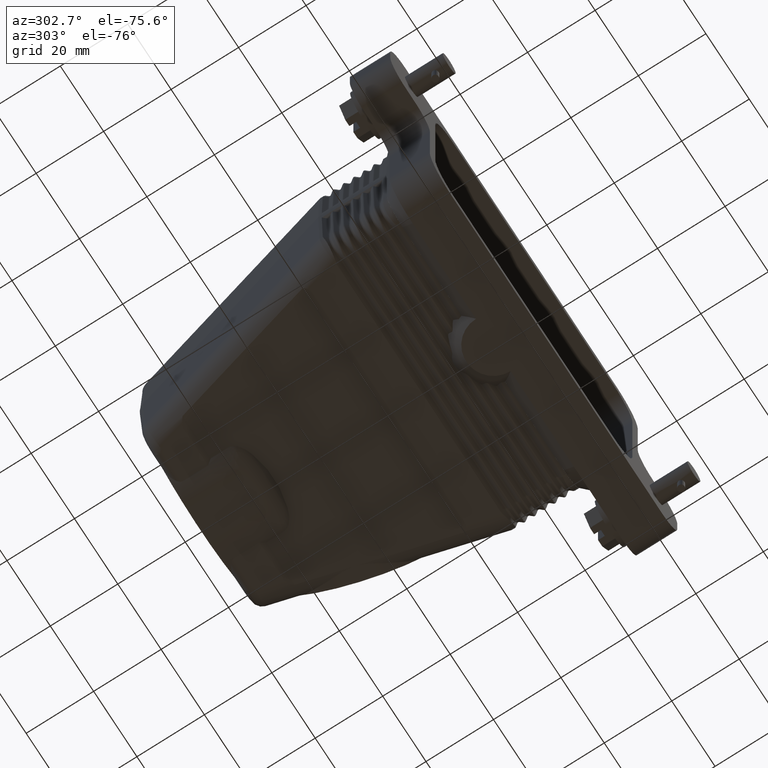
[diagram: clean part render]
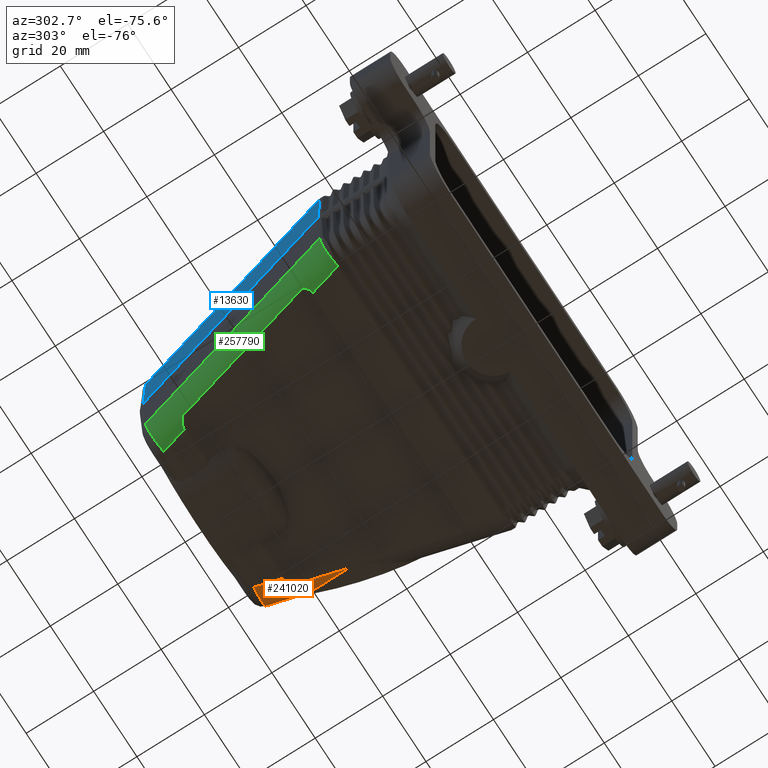
[diagram: same view with three faces highlighted in distinct colors, each labeled with its STEP entity id]
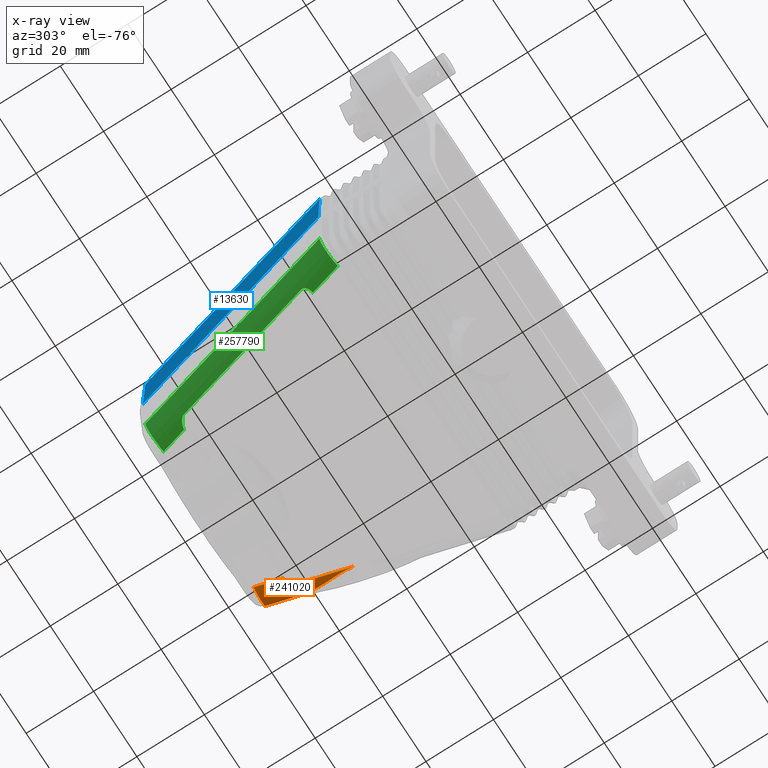
[diagram: x-ray of the same camera — body ghosted, the three highlighted faces saturated]
A machine part, auxiliary view with three faces highlighted in distinct colors.
The next image is the same camera in x-ray (body ghosted, the three faces saturated) — at least one of them is partly hidden behind the body in this view.
Their STEP definitions:

[orange] entity #241020 — the highlighted cylindrical surface (edge-blend (fillet) strip) has radius 7 mm, axis along (0.2588, -0.9659, 0).
#70700=CARTESIAN_POINT('',(140.159163449279,92.6777454564713,-52.5));
#70710=VERTEX_POINT('',#70700);
#229280=CARTESIAN_POINT('',(149.321386104139,68.5220606431268,-52.));
#229290=VERTEX_POINT('',#229280);
#229730=CARTESIAN_POINT('',(149.174350848663,86.0692632159365,
-45.6832386381551));
#229740=VERTEX_POINT('',#229730);
#229770=CARTESIAN_POINT('',(149.174350848663,86.069263215937,
-45.6832386381556));
#229780=CARTESIAN_POINT('',(149.19741194303,85.9747013221974,
-45.7672193528767));
#229790=CARTESIAN_POINT('',(149.2191872263,85.8791680838205,
-45.8504632649949));
#229800=CARTESIAN_POINT('',(149.239738920141,85.7827216634537,
-45.9329387243016));
#229810=CARTESIAN_POINT('',(149.260291169721,85.6862726350794,
-46.0154164138272));
#229820=CARTESIAN_POINT('',(149.279621592497,85.5889012630262,
-46.0971333011425));
#229830=CARTESIAN_POINT('',(149.297788160382,85.4906753696498,
-46.178051882957));
#229840=CARTESIAN_POINT('',(149.33412123377,85.2942239201943,
-46.3398887687201));
#229850=CARTESIAN_POINT('',(149.365820994264,85.0942417503173,
-46.4986226015293));
#229860=CARTESIAN_POINT('',(149.393332207757,84.8912104151763,
-46.6540219113793));
#229870=CARTESIAN_POINT('',(149.407088648072,84.7896885959112,
-46.7317262747849));
#229880=CARTESIAN_POINT('',(149.419793922787,84.6874369741311,
-46.8085737021883));
#229890=CARTESIAN_POINT('',(149.431514291166,84.5844056682899,
-46.8846204036945));
#229900=CARTESIAN_POINT('',(149.443234431817,84.4813763643674,
-46.9606656275982));
#229910=CARTESIAN_POINT('',(149.453966965404,84.377585302601,
-47.0358960919661));
#229920=CARTESIAN_POINT('',(149.463762820519,84.2730756666014,
-47.1102969005228));
#229930=CARTESIAN_POINT('',(149.483354529784,84.0640564048893,
-47.2590985103128));
#229940=CARTESIAN_POINT('',(149.499200868536,83.8521622243079,
-47.4045805977597));
#229950=CARTESIAN_POINT('',(149.511690619566,83.6377448140254,
-47.5466349385972));
#229960=CARTESIAN_POINT('',(149.524180372169,83.4233273767425,
-47.6886892973228));
#229970=CARTESIAN_POINT('',(149.533313125422,83.2063867511215,
-47.8273157678983));
#229980=CARTESIAN_POINT('',(149.539458598433,82.9872839625494,
-47.9624216452711));
#229990=CARTESIAN_POINT('',(149.545604072637,82.7681811314115,
-48.0975275488913));
#230000=CARTESIAN_POINT('',(149.548761952614,82.5469164909484,
-48.2291125649996));
#230010=CARTESIAN_POINT('',(149.549288216659,82.323860320929,
-48.3571009889246));
#230020=CARTESIAN_POINT('',(149.549814362496,82.1008542537594,
-48.4850606641054));
#230030=CARTESIAN_POINT('',(149.547711649305,81.8757868831283,
-48.6095834704956));
#230040=CARTESIAN_POINT('',(149.543300048654,81.6487894919037,
-48.7307026285714));
#230050=CARTESIAN_POINT('',(149.538888567492,81.4217982488638,
-48.8518185061559));
#230060=CARTESIAN_POINT('',(149.532167865117,81.1929030508219,
-48.9695159596884));
#230070=CARTESIAN_POINT('',(149.523446329755,80.9623106062555,
-49.083787121535));
#230080=B_SPLINE_CURVE_WITH_KNOTS('',3,(#229770,#229780,#229790,#229800,
#229810,#229820,#229830,#229840,#229850,#229860,#229870,#229880,#229890,
#229900,#229910,#229920,#229930,#229940,#229950,#229960,#229970,#229980,
#229990,#230000,#230010,#230020,#230030,#230040,#230050,#230060,#230070)
,.UNSPECIFIED.,.F.,.F.,(4,3,3,3,3,3,3,3,3,3,4),(0.,0.38566939265626,
0.771350184229131,1.54281393773652,1.9285205178388,2.31439959735082,
3.08668650675204,3.85923543607572,4.63129286765647,5.40291451027396,
6.1751676218947),.UNSPECIFIED.);
#230090=CARTESIAN_POINT('',(149.523446329755,80.9623106062556,
-49.0837871215353));
#230100=VERTEX_POINT('',#230090);
#230110=EDGE_CURVE('',#229740,#230100,#230080,.T.);
#230130=CARTESIAN_POINT('',(149.523446329755,80.9623106062556,
-49.0837871215355));
#230140=CARTESIAN_POINT('',(149.514283071177,80.7200392505598,
-49.203845822286));
#230150=CARTESIAN_POINT('',(149.502910541028,80.4758923488609,
-49.3201228922411));
#230160=CARTESIAN_POINT('',(149.489681995155,80.2301399102882,
-49.4326002240276));
#230170=CARTESIAN_POINT('',(149.476453448119,79.9843874500907,
-49.5450775657114));
#230180=CARTESIAN_POINT('',(149.46136846194,79.7370298625811,
-49.6537549158943));
#230190=CARTESIAN_POINT('',(149.444782510807,79.4883404975938,
-49.7586222473282));
#230200=CARTESIAN_POINT('',(149.428196555314,79.2396510672294,
-49.8634896063303));
#230210=CARTESIAN_POINT('',(149.410109198801,78.9896304000271,
-49.9645466896417));
#230220=CARTESIAN_POINT('',(149.390884866546,78.7385534175351,
-50.0617930214172));
#230230=CARTESIAN_POINT('',(149.37166052583,78.487476324532,
-50.1590393959954));
#230240=CARTESIAN_POINT('',(149.351298718566,78.2353435192247,
-50.2524747917697));
#230250=CARTESIAN_POINT('',(149.33018018082,77.9824293113831,
-50.3421092929592));
#230260=CARTESIAN_POINT('',(149.309069310323,77.7296069260138,
-50.4317112516451));
#230270=CARTESIAN_POINT('',(149.287152044804,77.4754186639201,
-50.5177244821599));
#230280=CARTESIAN_POINT('',(149.264809082253,77.219909717743,
-50.6001812937044));
#230290=CARTESIAN_POINT('',(149.253637986821,77.0921596570707,
-50.6414082755195));
#230300=CARTESIAN_POINT('',(149.242361880088,76.9640888267118,
-50.6817428925411));
#230310=CARTESIAN_POINT('',(149.231033918879,76.835716280805,
-50.7211843767257));
#230320=CARTESIAN_POINT('',(149.21970595794,76.7073437379635,
-50.7606258599685));
#230330=CARTESIAN_POINT('',(149.208326102094,76.5786695074561,
-50.7991742040127));
#230340=CARTESIAN_POINT('',(149.196951217945,76.4497124007029,
-50.8368286471846));
#230350=CARTESIAN_POINT('',(149.18557633323,76.3207552875419,
-50.8744830922275));
#230360=CARTESIAN_POINT('',(149.174206372694,76.1915153191427,
-50.9112436345622));
#230370=CARTESIAN_POINT('',(149.16290257445,76.0620107286932,
-50.9471095698264));
#230380=CARTESIAN_POINT('',(149.151598775056,75.932506125076,
-50.9829755087374));
#230390=CARTESIAN_POINT('',(149.140361081884,75.802736910689,
-51.0179468436238));
#230400=CARTESIAN_POINT('',(149.12925587723,75.6727204675507,
-51.0520229241464));
#230410=CARTESIAN_POINT('',(149.118150671266,75.5427040090652,
-51.0860990086913));
#230420=CARTESIAN_POINT('',(149.107177887568,75.4124403161279,
-51.1192798481258));
#230430=CARTESIAN_POINT('',(149.096409957304,75.2819457375559,
-51.1515647870055));
#230440=CARTESIAN_POINT('',(149.085642025803,75.1514511439792,
-51.1838497295974));
#230450=CARTESIAN_POINT('',(149.075078869946,75.0207256352599,
-51.2152387880372));
#230460=CARTESIAN_POINT('',(149.06480002147,74.8897844448395,
-51.2457311920873));
#230470=CARTESIAN_POINT('',(149.054521172303,74.7588432456313,
-51.2762235981839));
#230480=CARTESIAN_POINT('',(149.044526540737,74.6276863063956,
-51.3058193735695));
#230490=CARTESIAN_POINT('',(149.034903969486,74.4963278093369,
-51.3345174702873));
#230500=CARTESIAN_POINT('',(149.02528139851,74.3649693160213,
-51.3632155661874));
#230510=CARTESIAN_POINT('',(149.016030786587,74.2334091690548,
-51.3910160150221));
#230520=CARTESIAN_POINT('',(149.007249653894,74.1016607446668,
-51.4179172782726));
#230530=CARTESIAN_POINT('',(148.998468522789,73.9699123441051,
-51.4448185366582));
#230540=CARTESIAN_POINT('',(148.990156760667,73.8379755224892,
-51.4708206494829));
#230550=CARTESIAN_POINT('',(148.982423062966,73.7058633217061,
-51.495921329139));
#230560=CARTESIAN_POINT('',(148.974689368344,73.5737511735347,
-51.521021998799));
#230570=CARTESIAN_POINT('',(148.967533624669,73.4414634433227,
-51.5452212838503));
#230580=CARTESIAN_POINT('',(148.961077269933,73.3090135866082,
-51.5685158509379));
#230590=CARTESIAN_POINT('',(148.954620919639,73.1765638210024,
-51.5918104020017));
#230600=CARTESIAN_POINT('',(148.948863852335,73.0439516553357,
-51.6142002916113));
#230610=CARTESIAN_POINT('',(148.943941765855,72.9111920331733,
-51.6356808186828));
#230620=CARTESIAN_POINT('',(148.939019324932,72.77842285092,
-51.6571628925786));
#230630=CARTESIAN_POINT('',(148.934932915438,72.6455476739842,
-51.6777293204359));
#230640=CARTESIAN_POINT('',(148.931830924365,72.5124657477576,
-51.6973913290858));
#230650=CARTESIAN_POINT('',(148.928728584687,72.3793688656354,
-51.7170555473741));
#230660=CARTESIAN_POINT('',(148.926610722468,72.2460269470679,
-51.7358199917975));
#230670=CARTESIAN_POINT('',(148.92565043718,72.1125149794957,
-51.7536651587498));
#230680=CARTESIAN_POINT('',(148.924690151659,71.9790029793608,
-51.7715103300543));
#230690=CARTESIAN_POINT('',(148.924887541048,71.8453206522519,
-51.7884362877978));
#230700=CARTESIAN_POINT('',(148.926429235201,71.7115421077698,
-51.8044250589056));
#230710=CARTESIAN_POINT('',(148.927970929573,71.5777635443152,
-51.820413832281));
#230720=CARTESIAN_POINT('',(148.930857143385,71.443888468873,
-51.8354654778387));
#230730=CARTESIAN_POINT('',(148.935285744583,71.3099908214592,
-51.8495630776581));
#230740=CARTESIAN_POINT('',(148.939714345916,71.1760931699415,
-51.8636606779096));
#230750=CARTESIAN_POINT('',(148.945685700719,71.0421727324359,
-51.8768042726908));
#230760=CARTESIAN_POINT('',(148.953404653938,70.9083040432404,
-51.8889776012669));
#230770=CARTESIAN_POINT('',(148.961123607339,70.7744353508794,
-51.9011509301309));
#230780=CARTESIAN_POINT('',(148.970590689922,70.6406184260473,
-51.9123540015536));
#230790=CARTESIAN_POINT('',(148.982011036646,70.5069286183151,
-51.9225709835175));
#230800=CARTESIAN_POINT('',(148.993431913663,70.3732326028284,
-51.9327884398969));
#230810=CARTESIAN_POINT('',(149.00680259541,70.2396986110576,
-51.9420176930935));
#230820=CARTESIAN_POINT('',(149.022335363443,70.1062715375635,
-51.9502509621277));
#230830=CARTESIAN_POINT('',(149.037867229945,69.9728522082599,
-51.9584837532977));
#230840=CARTESIAN_POINT('',(149.055558079387,69.8395920744015,
-51.9657163657843));
#230850=CARTESIAN_POINT('',(149.075572500607,69.7066521015217,
-51.9719291054122));
#230860=CARTESIAN_POINT('',(149.095587662406,69.573707209567,
-51.9781420749253));
#230870=CARTESIAN_POINT('',(149.11792336113,69.4411054701554,
-51.9833343128464));
#230880=CARTESIAN_POINT('',(149.142709792381,69.3089408246598,
-51.9874942961823));
#230890=CARTESIAN_POINT('',(149.15510395972,69.2428534272469,
-51.9895744475792));
#230900=CARTESIAN_POINT('',(149.168111734871,69.1768676444828,
-51.9913967432786));
#230910=CARTESIAN_POINT('',(149.181742642357,69.1110064937529,
-51.9929596299045));
#230920=CARTESIAN_POINT('',(149.195373556252,69.045145312061,
-51.9945225172652));
#230930=CARTESIAN_POINT('',(149.209627571514,68.9794090086139,
-51.9958259899541));
#230940=CARTESIAN_POINT('',(149.224510000057,68.9138193111643,
-51.99686906746));
#230950=CARTESIAN_POINT('',(149.239392622418,68.8482287595262,
-51.9979121585501));
#230960=CARTESIAN_POINT('',(149.254906261757,68.7827735265082,
-51.9986950225218));
#230970=CARTESIAN_POINT('',(149.271051929442,68.7174761143942,
-51.9992169708797));
#230980=CARTESIAN_POINT('',(149.287197479297,68.6521791788161,
-51.9997389154285));
#230990=CARTESIAN_POINT('',(149.303976572376,68.5870339002009,
-52.0000000000003));
#231000=CARTESIAN_POINT('',(149.321386104138,68.5220606431266,
-52.0000000000003));
#231010=B_SPLINE_CURVE_WITH_KNOTS('',3,(#230130,#230140,#230150,#230160,
#230170,#230180,#230190,#230200,#230210,#230220,#230230,#230240,#230250,
#230260,#230270,#230280,#230290,#230300,#230310,#230320,#230330,#230340,
#230350,#230360,#230370,#230380,#230390,#230400,#230410,#230420,#230430,
#230440,#230450,#230460,#230470,#230480,#230490,#230500,#230510,#230520,
#230530,#230540,#230550,#230560,#230570,#230580,#230590,#230600,#230610,
#230620,#230630,#230640,#230650,#230660,#230670,#230680,#230690,#230700,
#230710,#230720,#230730,#230740,#230750,#230760,#230770,#230780,#230790,
#230800,#230810,#230820,#230830,#230840,#230850,#230860,#230870,#230880,
#230890,#230900,#230910,#230920,#230930,#230940,#230950,#230960,#230970,
#230980,#230990,#231000),.UNSPECIFIED.,.F.,.F.,(4,3,3,3,3,3,3,3,3,3,3,3,
3,3,3,3,3,3,3,3,3,3,3,3,3,3,3,3,3,4),(0.,0.811756823487459,
1.62331768707857,2.43390453881183,3.24262832898539,4.05031355009149,
4.45452859336617,4.85892552024272,5.26344548949972,5.66802978023485,
6.07262215471936,6.47717093790631,6.88163078574322,7.28596412095562,
7.69014222899397,8.09414603197007,8.49796659795656,8.90162803006919,
9.30557307670372,9.70975589502294,10.1139442892208,10.5179801319369,
10.9217897875131,11.3254406410166,11.7291956836394,12.1328597024735,
12.3346834346688,12.5364965863862,12.7382979229667,12.9400969068488),
.UNSPECIFIED.);
#231020=EDGE_CURVE('',#230100,#229290,#231010,.T.);
#233120=CARTESIAN_POINT('',(147.16830226862,93.5559384391076,
-45.6832386381551));
#233130=CARTESIAN_POINT('',(147.164845513271,93.5531715430043,
-45.8380964560631));
#233140=CARTESIAN_POINT('',(147.156219535937,93.5498368700739,
-45.9927862041143));
#233150=CARTESIAN_POINT('',(147.13869016824,93.5448802509636,
-46.1890012945022));
#233160=CARTESIAN_POINT('',(147.134560251907,93.5437787462836,
-46.2309283706533));
#233170=CARTESIAN_POINT('',(147.115001775093,93.5388232859488,
-46.4125479671394));
#233180=CARTESIAN_POINT('',(147.095724954745,93.5345524922072,
-46.5517555367012));
#233190=CARTESIAN_POINT('',(147.048783726043,93.5251078418936,
-46.8287041449213));
#233200=CARTESIAN_POINT('',(147.021119313504,93.5199339842005,
-46.9664451828323));
#233210=CARTESIAN_POINT('',(146.957496337755,93.5087016043381,
-47.2399905191638));
#233220=CARTESIAN_POINT('',(146.92156503458,93.5026476575591,
-47.3756915721546));
#233230=CARTESIAN_POINT('',(146.841580082943,93.4896818684874,
-47.6445973857207));
#233240=CARTESIAN_POINT('',(146.797526423617,93.4827700232836,
-47.7778021429239));
#233250=CARTESIAN_POINT('',(146.701460812419,93.4681145477144,
-48.0412445463218));
#233260=CARTESIAN_POINT('',(146.649490432324,93.4603770156593,
-48.1713817819244));
#233270=CARTESIAN_POINT('',(146.537829525874,93.4441035011793,
-48.4281855596834));
#233280=CARTESIAN_POINT('',(146.478138983361,93.4355675144246,
-48.5548520945397));
#233290=CARTESIAN_POINT('',(146.351285938136,93.4177326068849,
-48.8042268586253));
#233300=CARTESIAN_POINT('',(146.284177566823,93.4084410744927,
-48.9268459889292));
#233310=CARTESIAN_POINT('',(146.142771851799,93.389131972519,
-49.1677105807311));
#233320=CARTESIAN_POINT('',(146.068474487975,93.3791143975483,
-49.2859560299896));
#233330=CARTESIAN_POINT('',(145.888928233715,93.3551870576183,
-49.5534967883121));
#233340=CARTESIAN_POINT('',(145.781310451431,93.3410444105122,
-49.7009521015404));
#233350=CARTESIAN_POINT('',(145.554994178913,93.3116758911501,
-49.9867977117325));
#233360=CARTESIAN_POINT('',(145.436295610854,93.296449998041,
-50.1251879449362));
#233370=CARTESIAN_POINT('',(145.064914820009,93.249318495964,
-50.5253388939433));
#233380=CARTESIAN_POINT('',(144.797338019042,93.2160051204407,
-50.7718101593628));
#233390=CARTESIAN_POINT('',(144.512204489689,93.181095757544,
-50.9961667998396));
#233400=CARTESIAN_POINT('',(144.398615243199,93.1671888408939,
-51.0855442287049));
#233410=CARTESIAN_POINT('',(144.282381428218,93.153045898886,
-51.1713003604511));
#233420=CARTESIAN_POINT('',(144.044964147054,93.1243286014318,
-51.3353871153641));
#233430=CARTESIAN_POINT('',(143.923780660077,93.1097542404142,
-51.4137177074714));
#233440=CARTESIAN_POINT('',(143.553633277465,93.0654821583071,
-51.6370918996198));
#233450=CARTESIAN_POINT('',(143.298288372046,93.0352607405833,
-51.7704449650477));
#233460=CARTESIAN_POINT('',(142.904519497081,92.9891153740342,
-51.9462784687071));
#233470=CARTESIAN_POINT('',(142.771669945989,92.9736211335206,
-52.0007767455192));
#233480=CARTESIAN_POINT('',(142.502983610876,92.942430408636,
-52.1015196406767));
#233490=CARTESIAN_POINT('',(142.367146817286,92.926733921701,
-52.1477642327081));
#233500=CARTESIAN_POINT('',(142.092977590375,92.8951949653371,
-52.2318518399074));
#233510=CARTESIAN_POINT('',(141.954790240102,92.8793690540963,
-52.2696592265472));
#233520=CARTESIAN_POINT('',(141.676440679626,92.8476303210336,
-52.3367820210951));
#233530=CARTESIAN_POINT('',(141.536278464457,92.8317174978814,
-52.3660974077839));
#233540=CARTESIAN_POINT('',(141.251236467946,92.7994947299257,
-52.4167193593897));
#233550=CARTESIAN_POINT('',(141.106476926166,92.7832014200773,
-52.437807822466));
#233560=CARTESIAN_POINT('',(140.885784377597,92.7584688242049,
-52.4629974239067));
#233570=CARTESIAN_POINT('',(140.810213120048,92.7500186800056,
-52.4703915546674));
#233580=CARTESIAN_POINT('',(140.543127084599,92.7202207651223,
-52.4921866699699));
#233590=CARTESIAN_POINT('',(140.351202809753,92.6989292703099,-52.5));
#233600=CARTESIAN_POINT('',(140.159163449279,92.6777454564713,-52.5));
#233610=B_SPLINE_CURVE_WITH_KNOTS('',3,(#233120,#233130,#233140,#233150,
#233160,#233170,#233180,#233190,#233200,#233210,#233220,#233230,#233240,
#233250,#233260,#233270,#233280,#233290,#233300,#233310,#233320,#233330,
#233340,#233350,#233360,#233370,#233380,#233390,#233400,#233410,#233420,
#233430,#233440,#233450,#233460,#233470,#233480,#233490,#233500,#233510,
#233520,#233530,#233540,#233550,#233560,#233570,#233580,#233590,#233600)
,.UNSPECIFIED.,.F.,.F.,(4,2,2,2,2,2,2,2,2,2,2,2,2,3,2,2,2,2,2,2,2,2,2,4)
,(0.,0.36456452773296,0.463727821499631,0.794501246647524,
1.12527467179542,1.45592753865233,1.78658040550924,2.11705559388232,
2.44753078225541,2.77769473029027,3.10785867832514,3.53994087027085,
3.97202306221657,4.83474780392678,5.17842357965083,5.52209935537488,
6.20854795155717,6.55145152808718,6.89435510461718,7.23693070250536,
7.57950630039354,7.92962144752924,8.11145258324289,8.571347131476),
.UNSPECIFIED.);
#233620=CARTESIAN_POINT('',(147.16830226862,93.5559384391076,
-45.6832386381551));
#233630=VERTEX_POINT('',#233620);
#233640=EDGE_CURVE('',#233630,#70710,#233610,.T.);
#234660=CARTESIAN_POINT('',(142.137593764723,85.294143,-52.5));
#234670=VERTEX_POINT('',#234660);
#234830=CARTESIAN_POINT('',(145.229243969873,83.794143,-52.));
#234840=VERTEX_POINT('',#234830);
#234870=CARTESIAN_POINT('',(147.764526805776,64.294143,-45.5));
#234880=DIRECTION('',(0.,0.316227766016838,0.948683298050514));
#234890=DIRECTION('',(-0.271809559606373,0.912966377790513,
-0.304322125930171));
#234900=AXIS2_PLACEMENT_3D('',#234870,#234880,#234890);
#234910=ELLIPSE('',#234900,22.9168151619068,7.);
#234920=EDGE_CURVE('',#234840,#234670,#234910,.T.);
#240730=CARTESIAN_POINT('',(164.992090500677,0.,-45.5));
#240740=DIRECTION('',(0.258819045102521,-0.965925826289068,0.));
#240750=DIRECTION('',(-0.965925826289068,-0.258819045102521,0.));
#240760=AXIS2_PLACEMENT_3D('',#240730,#240740,#240750);
#240770=CYLINDRICAL_SURFACE('',#240760,7.);
#240780=CARTESIAN_POINT('',(164.992090500677,-1.10936670300112E-16,-52.5
));
#240790=DIRECTION('',(0.258819045102521,-0.965925826289068,0.));
#240800=VECTOR('',#240790,1.);
#240810=LINE('',#240780,#240800);
#240820=EDGE_CURVE('',#70710,#234670,#240810,.T.);
#240830=ORIENTED_EDGE('',*,*,#240820,.F.);
#240840=ORIENTED_EDGE('',*,*,#234920,.T.);
#240850=CARTESIAN_POINT('',(167.501639411891,0.672431604126037,-52.));
#240860=DIRECTION('',(0.258819045102521,-0.965925826289068,0.));
#240870=VECTOR('',#240860,1.);
#240880=LINE('',#240850,#240870);
#240890=EDGE_CURVE('',#234840,#229290,#240880,.T.);
#240900=ORIENTED_EDGE('',*,*,#240890,.F.);
#240910=ORIENTED_EDGE('',*,*,#231020,.T.);
#240920=ORIENTED_EDGE('',*,*,#230110,.T.);
#240930=CARTESIAN_POINT('',(171.751254294108,1.8111124799594,
-45.6832386381551));
#240940=DIRECTION('',(0.258819045102521,-0.965925826289068,
-2.17966880443675E-18));
#240950=VECTOR('',#240940,1.);
#240960=LINE('',#240930,#240950);
#240970=EDGE_CURVE('',#233630,#229740,#240960,.T.);
#240980=ORIENTED_EDGE('',*,*,#240970,.T.);
#240990=ORIENTED_EDGE('',*,*,#233640,.F.);
#241000=EDGE_LOOP('',(#240990,#240980,#240920,#240910,#240900,#240840,
#240830));
#241010=FACE_OUTER_BOUND('',#241000,.T.);
#241020=ADVANCED_FACE('',(#241010),#240770,.T.);

[blue] entity #13630 — the highlighted planar face has unit normal (-0.9656, 0.2587, 0.0262).
#13240=CARTESIAN_POINT('',(95.1385051833584,106.117990588117,
-0.00890955063551313));
#13250=DIRECTION('',(-0.965594827632935,0.258730354279914,
0.0261769483078732));
#13260=DIRECTION('',(0.258819045102521,0.965925826289068,
1.08983440221838E-17));
#13270=AXIS2_PLACEMENT_3D('',#13240,#13250,#13260);
#13280=PLANE('',#13270);
#13290=CARTESIAN_POINT('',(75.0657399607989,31.2045095086185,0.));
#13300=DIRECTION('',(-0.026176792861216,0.003446240159007,
-0.999651388707217));
#13310=VECTOR('',#13300,1.);
#13320=LINE('',#13290,#13310);
#13330=CARTESIAN_POINT('',(74.9003297432063,31.2262861768911,
-6.31676136184489));
#13340=VERTEX_POINT('',#13330);
#13350=CARTESIAN_POINT('',(74.384906,31.294143,-26.0000000000001));
#13360=VERTEX_POINT('',#13350);
#13370=EDGE_CURVE('',#13340,#13360,#13320,.T.);
#13380=ORIENTED_EDGE('',*,*,#13370,.F.);
#13390=CARTESIAN_POINT('',(65.9996656553259,0.,-26.0000000000001));
#13400=DIRECTION('',(-0.258819045102521,-0.965925826289068,0.));
#13410=VECTOR('',#13400,1.);
#13420=LINE('',#13390,#13410);
#13430=CARTESIAN_POINT('',(91.206011157678,94.0713620879131,
-26.0000000000001));
#13440=VERTEX_POINT('',#13430);
#13450=EDGE_CURVE('',#13440,#13360,#13420,.T.);
#13460=ORIENTED_EDGE('',*,*,#13450,.T.);
#13470=CARTESIAN_POINT('',(91.601509731377,93.5559384390967,
-6.31676136184489));
#13480=DIRECTION('',(-0.0200822294205101,0.0261716644575434,
-0.999455725903366));
#13490=VECTOR('',#13480,1.);
#13500=LINE('',#13470,#13490);
#13510=CARTESIAN_POINT('',(91.601509731377,93.5559384390967,
-6.31676136184489));
#13520=VERTEX_POINT('',#13510);
#13530=EDGE_CURVE('',#13520,#13440,#13500,.T.);
#13540=ORIENTED_EDGE('',*,*,#13530,.T.);
#13550=CARTESIAN_POINT('',(67.0185577058923,1.8111124799594,
-6.31676136184489));
#13560=DIRECTION('',(0.258819045102521,0.965925826289068,0.));
#13570=VECTOR('',#13560,1.);
#13580=LINE('',#13550,#13570);
#13590=EDGE_CURVE('',#13340,#13520,#13580,.T.);
#13600=ORIENTED_EDGE('',*,*,#13590,.T.);
#13610=EDGE_LOOP('',(#13600,#13540,#13460,#13380));
#13620=FACE_OUTER_BOUND('',#13610,.T.);
#13630=ADVANCED_FACE('',(#13620),#13280,.T.);

[green] entity #257790 — the highlighted cylindrical surface (edge-blend (fillet) strip) has radius 7 mm, axis along (0.2588, 0.9659, 0).
#241770=CARTESIAN_POINT('',(93.5405680301267,83.794143,-52.));
#241780=VERTEX_POINT('',#241770);
#241810=CARTESIAN_POINT('',(71.2681725881094,0.672431604126041,-52.));
#241820=DIRECTION('',(0.258819045102521,0.965925826289068,0.));
#241830=VECTOR('',#241820,1.);
#241840=LINE('',#241810,#241830);
#241850=CARTESIAN_POINT('',(82.0187527555884,40.794143,-52.));
#241860=VERTEX_POINT('',#241850);
#241870=EDGE_CURVE('',#241860,#241780,#241840,.T.);
#244420=CARTESIAN_POINT('',(89.9334884244994,60.294143,-45.5));
#244430=DIRECTION('',(0.,-0.316227766016838,0.948683298050514));
#244440=DIRECTION('',(0.271809559606373,0.912966377790513,
0.304322125930171));
#244450=AXIS2_PLACEMENT_3D('',#244420,#244430,#244440);
#244460=ELLIPSE('',#244450,22.9168151619068,7.);
#244470=CARTESIAN_POINT('',(84.3065553834459,39.294143,-52.5));
#244480=VERTEX_POINT('',#244470);
#244490=EDGE_CURVE('',#241860,#244480,#244460,.T.);
#244790=CARTESIAN_POINT('',(81.8979310180352,30.3050344919391,-52.5));
#244800=VERTEX_POINT('',#244790);
#244830=CARTESIAN_POINT('',(81.8979310180352,30.3050344919391,-45.5));
#244840=DIRECTION('',(0.130526192220052,0.99144486137381,0.));
#244850=DIRECTION('',(0.99144486137381,-0.130526192220052,0.));
#244860=AXIS2_PLACEMENT_3D('',#244830,#244840,#244850);
#244870=ELLIPSE('',#244860,7.06040272406107,7.);
#244880=CARTESIAN_POINT('',(74.9003297432063,31.2262861768911,
-45.6832386381551));
#244890=VERTEX_POINT('',#244880);
#244900=EDGE_CURVE('',#244800,#244890,#244870,.T.);
#251020=CARTESIAN_POINT('',(91.6015097069825,93.5559383480569,
-45.6832386381551));
#251030=VERTEX_POINT('',#251020);
#253140=CARTESIAN_POINT('',(98.6106485509901,92.677745457474,-52.5));
#253150=VERTEX_POINT('',#253140);
#253390=CARTESIAN_POINT('',(73.7777214993228,-5.13222278618153E-16,-52.5
));
#253400=DIRECTION('',(0.258819045102521,0.965925826289068,0.));
#253410=VECTOR('',#253400,1.);
#253420=LINE('',#253390,#253410);
#253430=CARTESIAN_POINT('',(96.6322182352775,85.294143,-52.5));
#253440=VERTEX_POINT('',#253430);
#253450=EDGE_CURVE('',#253440,#253150,#253420,.T.);
#256990=CARTESIAN_POINT('',(73.7777214993228,0.,-45.5));
#257000=DIRECTION('',(0.258819045102521,0.965925826289068,0.));
#257010=DIRECTION('',(0.965925826289068,-0.258819045102521,0.));
#257020=AXIS2_PLACEMENT_3D('',#256990,#257000,#257010);
#257030=CYLINDRICAL_SURFACE('',#257020,7.);
#257040=CARTESIAN_POINT('',(94.9789565373811,106.160741518967,
-45.6832386381551));
#257050=DIRECTION('',(0.258819045102521,0.965925826289068,0.));
#257060=VECTOR('',#257050,1.);
#257070=LINE('',#257040,#257060);
#257080=EDGE_CURVE('',#244890,#251030,#257070,.T.);
#257090=ORIENTED_EDGE('',*,*,#257080,.T.);
#257100=ORIENTED_EDGE('',*,*,#244900,.T.);
#257110=CARTESIAN_POINT('',(84.3065553834459,39.294143,-52.5));
#257120=DIRECTION('',(-0.258819045102521,-0.965925826289068,0.));
#257130=VECTOR('',#257120,1.);
#257140=LINE('',#257110,#257130);
#257150=EDGE_CURVE('',#244480,#244800,#257140,.T.);
#257160=ORIENTED_EDGE('',*,*,#257150,.T.);
#257170=ORIENTED_EDGE('',*,*,#244490,.T.);
#257180=ORIENTED_EDGE('',*,*,#241870,.F.);
#257190=CARTESIAN_POINT('',(91.0052851942239,64.294143,-45.5));
#257200=DIRECTION('',(0.,0.316227766016838,0.948683298050514));
#257210=DIRECTION('',(0.271809559606373,0.912966377790513,
-0.304322125930171));
#257220=AXIS2_PLACEMENT_3D('',#257190,#257200,#257210);
#257230=ELLIPSE('',#257220,22.9168151619068,7.);
#257240=EDGE_CURVE('',#253440,#241780,#257230,.T.);
#257250=ORIENTED_EDGE('',*,*,#257240,.T.);
#257260=ORIENTED_EDGE('',*,*,#253450,.F.);
#257270=CARTESIAN_POINT('',(98.6106485509901,92.677745457474,-52.5));
#257280=CARTESIAN_POINT('',(98.4186096752159,92.6989292207415,-52.5));
#257290=CARTESIAN_POINT('',(98.2266837668834,92.7202208858684,
-52.4921865972327));
#257300=CARTESIAN_POINT('',(97.9726045485467,92.7485676721174,
-52.4714528589846));
#257310=CARTESIAN_POINT('',(97.9100026579453,92.7555649285774,
-52.465502604577));
#257320=CARTESIAN_POINT('',(97.7000626638821,92.7790743724876,
-52.4427173578739));
#257330=CARTESIAN_POINT('',(97.5531219916031,92.7956014053776,
-52.4220754559545));
#257340=CARTESIAN_POINT('',(97.1141446697172,92.8451934599703,
-52.3462209793498));
#257350=CARTESIAN_POINT('',(96.8248059173235,92.8781736247022,
-52.2772017123266));
#257360=CARTESIAN_POINT('',(96.3348330834866,92.9345365962667,
-52.1269839130681));
#257370=CARTESIAN_POINT('',(96.1320285061302,92.9580246022388,
-52.0544982589973));
#257380=CARTESIAN_POINT('',(95.8330412591216,92.9928950131246,
-51.9318673150908));
#257390=CARTESIAN_POINT('',(95.734275456818,93.0044550772358,
-51.8886799475852));
#257400=CARTESIAN_POINT('',(95.5387635799302,93.0274224439751,
-51.7977713993604));
#257410=CARTESIAN_POINT('',(95.4420175015878,93.0388297476101,
-51.7500502269778));
#257420=CARTESIAN_POINT('',(95.154622964647,93.0728446318441,
-51.5999448419147));
#257430=CARTESIAN_POINT('',(94.967643651471,93.0951483024908,
-51.4910063342035));
#257440=CARTESIAN_POINT('',(94.6043384528694,93.138842371591,
-51.2561585687842));
#257450=CARTESIAN_POINT('',(94.4280124401974,93.1602328041402,
-51.1302495142674));
#257460=CARTESIAN_POINT('',(94.2576075103109,93.181095757544,
-50.9961667998396));
#257470=CARTESIAN_POINT('',(94.1434585485142,93.1950712010518,
-50.9063489603147));
#257480=CARTESIAN_POINT('',(94.0320834969055,93.2087958957182,
-50.8129542344256));
#257490=CARTESIAN_POINT('',(93.8152559347487,93.2356977036016,
-50.6192837526396));
#257500=CARTESIAN_POINT('',(93.7098033992352,93.2488748235081,
-50.5190080256224));
#257510=CARTESIAN_POINT('',(93.4025992220284,93.2875538307254,
-50.2079925151576));
#257520=CARTESIAN_POINT('',(93.2106742831414,93.3121191869287,
-49.9876728991722));
#257530=CARTESIAN_POINT('',(92.9440682070522,93.3468906181672,
-49.639606775011));
#257540=CARTESIAN_POINT('',(92.8587904268997,93.3581295940455,
-49.5206962661205));
#257550=CARTESIAN_POINT('',(92.6958218083345,93.3798514626593,
-49.2776137059184));
#257560=CARTESIAN_POINT('',(92.6181309438554,93.3903343623792,
-49.1534416727063));
#257570=CARTESIAN_POINT('',(92.4705360566369,93.4105190108656,
-48.9000609703622));
#257580=CARTESIAN_POINT('',(92.4007062802602,93.4202109848577,
-48.7709592017995));
#257590=CARTESIAN_POINT('',(92.269304093833,93.4387495672515,
-48.5084813180393));
#257600=CARTESIAN_POINT('',(92.2077316610412,93.4475961817467,
-48.3751052146571));
#257610=CARTESIAN_POINT('',(92.0943691437034,93.4642231511134,
-48.1075424497863));
#257620=CARTESIAN_POINT('',(92.0424360822257,93.4720163081183,
-47.9735506595403));
#257630=CARTESIAN_POINT('',(91.9469469352468,93.4867251524356,
-47.7025162697374));
#257640=CARTESIAN_POINT('',(91.9033908347357,93.4936408437698,
-47.565473675687));
#257650=CARTESIAN_POINT('',(91.8247985960091,93.5065743461729,
-47.288691392537));
#257660=CARTESIAN_POINT('',(91.7897983618264,93.5125865297237,
-47.1490614190243));
#257670=CARTESIAN_POINT('',(91.7285216703681,93.5236783633364,
-46.8678388831182));
#257680=CARTESIAN_POINT('',(91.7022452052977,93.5287580154868,
-46.7262463225056));
#257690=CARTESIAN_POINT('',(91.658514357944,93.5379682145392,
-46.4415288386859));
#257700=CARTESIAN_POINT('',(91.6410785065935,93.542094983255,
-46.2985170965931));
#257710=CARTESIAN_POINT('',(91.6138929748745,93.5497210689952,
-45.9981562864007));
#257720=CARTESIAN_POINT('',(91.6050265564137,93.5531231647443,
-45.8407904256164));
#257730=CARTESIAN_POINT('',(91.6015097069825,93.5559383480569,
-45.6832386381551));
#257740=B_SPLINE_CURVE_WITH_KNOTS('',3,(#257270,#257280,#257290,#257300,
#257310,#257320,#257330,#257340,#257350,#257360,#257370,#257380,#257390,
#257400,#257410,#257420,#257430,#257440,#257450,#257460,#257470,#257480,
#257490,#257500,#257510,#257520,#257530,#257540,#257550,#257560,#257570,
#257580,#257590,#257600,#257610,#257620,#257630,#257640,#257650,#257660,
#257670,#257680,#257690,#257700,#257710,#257720,#257730),.UNSPECIFIED.,
.F.,.F.,(4,2,2,2,2,2,2,2,2,3,2,2,2,2,2,2,2,2,2,2,2,2,4),(0.,
0.459595387333782,0.610085463230508,0.964978209347674,1.67526838177595,
2.1892117350481,2.44640282081792,2.70359390658774,3.21894752435594,
3.73430114212414,4.07951099674902,4.4247208513739,5.11609599483948,
5.46213079897066,5.80816560310184,6.1545799009557,6.50099419880956,
6.83960023828736,7.17820627776516,7.51698309015756,7.85575990254995,
8.19457865854314,8.565307286751),.UNSPECIFIED.);
#257750=EDGE_CURVE('',#253150,#251030,#257740,.T.);
#257760=ORIENTED_EDGE('',*,*,#257750,.F.);
#257770=EDGE_LOOP('',(#257760,#257260,#257250,#257180,#257170,#257160,
#257100,#257090));
#257780=FACE_OUTER_BOUND('',#257770,.T.);
#257790=ADVANCED_FACE('',(#257780),#257030,.T.);